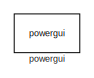
[diagram: root canvas - part 1/4, top left region]
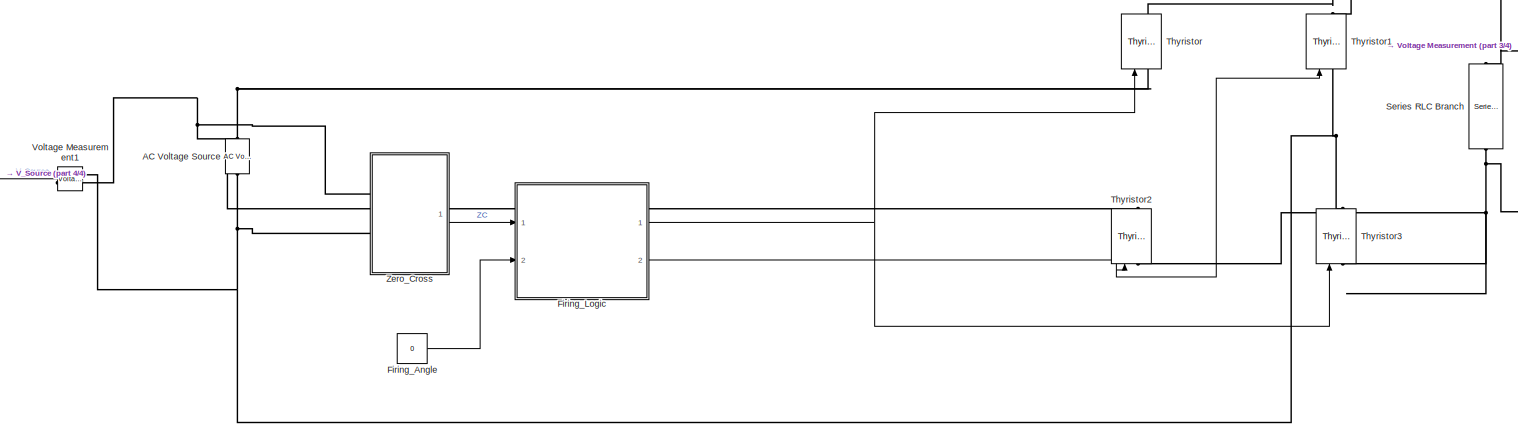
[diagram: root canvas - part 2/4, full width, bottom band]
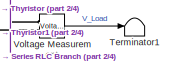
[diagram: root canvas - part 3/4, middle right region]
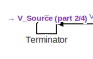
[diagram: root canvas - part 4/4, bottom left region]
MODEL slx_744086b87c65
KIND model
CONFIG AbsTol = auto
CONFIG EnableMultiTasking = on
CONFIG FixedStep = auto
CONFIG MaxStep = 1e-4
CONFIG MinStep = auto
CONFIG RelTol = 1e-3
CONFIG SampleTimeConstraint = Unconstrained
CONFIG Solver = ode23tb
CONFIG SolverName = ode23tb
CONFIG StartTime = 0.0
CONFIG StopTime = 0.1
BLOCK [Reference] AC Voltage Source  REF=powerlib/Electrical
Sources/AC Voltage Source
  NameLocation = left
  Ports = [0, 0, 0, 0, 0, 1, 1]
  SourceBlock = powerlib/Electrical\nSources/AC Voltage Source
  SourceProductBaseCode = PS
  SourceType = AC Voltage Source
BLOCK [Constant] Firing_Angle
  Value = 0
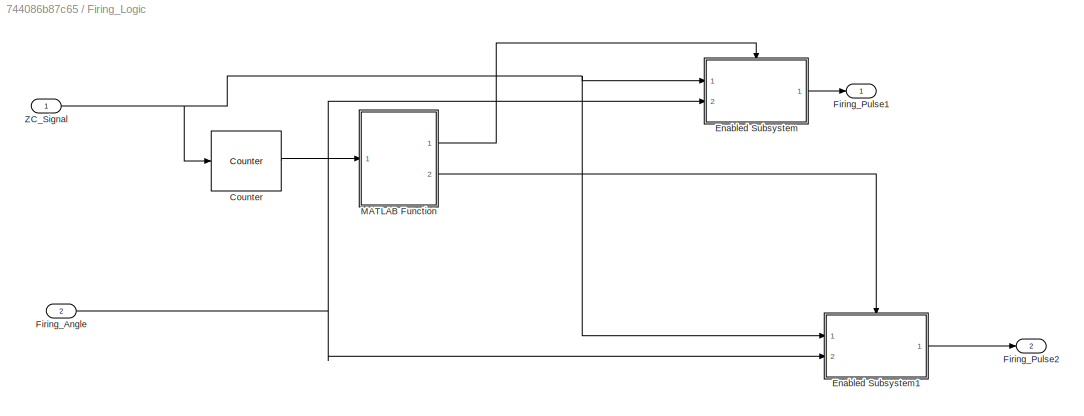
BLOCK [SubSystem] Firing_Logic
  Ports = [2, 2]
  RequestExecContextInheritance = off
BLOCK [Reference] Firing_Logic/Counter  REF=dspswit3/Counter
  Ports = [1, 1]
  SourceBlock = dspswit3/Counter
  SourceProductBaseCode = DS
  SourceType = Counter
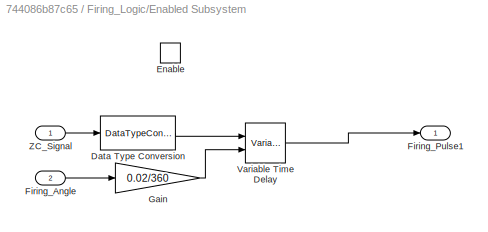
BLOCK [SubSystem] Firing_Logic/Enabled Subsystem
  Ports = [2, 1, 1]
  RequestExecContextInheritance = off
  TreatAsAtomicUnit = on
BLOCK [DataTypeConversion] Firing_Logic/Enabled Subsystem/Data Type Conversion
  OutDataTypeStr = double
  RndMeth = Floor
  SaturateOnIntegerOverflow = off
BLOCK [EnablePort] Firing_Logic/Enabled Subsystem/Enable
  Ports = []
BLOCK [Inport] Firing_Logic/Enabled Subsystem/Firing_Angle
  Port = 2
BLOCK [Outport] Firing_Logic/Enabled Subsystem/Firing_Pulse1
BLOCK [Gain] Firing_Logic/Enabled Subsystem/Gain
  Gain = 0.02/360
BLOCK [VariableTransportDelay] Firing_Logic/Enabled Subsystem/Variable Time Delay
  MaximumDelay = 10
  Ports = [2, 1]
BLOCK [Inport] Firing_Logic/Enabled Subsystem/ZC_Signal
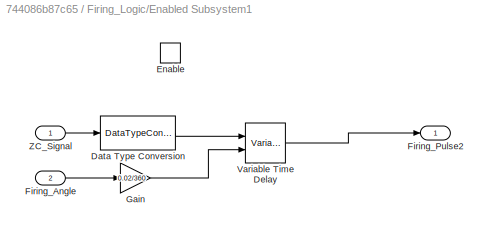
BLOCK [SubSystem] Firing_Logic/Enabled Subsystem1
  Ports = [2, 1, 1]
  RequestExecContextInheritance = off
  TreatAsAtomicUnit = on
BLOCK [DataTypeConversion] Firing_Logic/Enabled Subsystem1/Data Type Conversion
  OutDataTypeStr = double
  RndMeth = Floor
  SaturateOnIntegerOverflow = off
BLOCK [EnablePort] Firing_Logic/Enabled Subsystem1/Enable
  Ports = []
BLOCK [Inport] Firing_Logic/Enabled Subsystem1/Firing_Angle
  Port = 2
BLOCK [Outport] Firing_Logic/Enabled Subsystem1/Firing_Pulse2
BLOCK [Gain] Firing_Logic/Enabled Subsystem1/Gain
  Gain = 0.02/360
BLOCK [VariableTransportDelay] Firing_Logic/Enabled Subsystem1/Variable Time Delay
  MaximumDelay = 10
  Ports = [2, 1]
BLOCK [Inport] Firing_Logic/Enabled Subsystem1/ZC_Signal
BLOCK [Inport] Firing_Logic/Firing_Angle
  Port = 2
BLOCK [Outport] Firing_Logic/Firing_Pulse1
BLOCK [Outport] Firing_Logic/Firing_Pulse2
  Port = 2
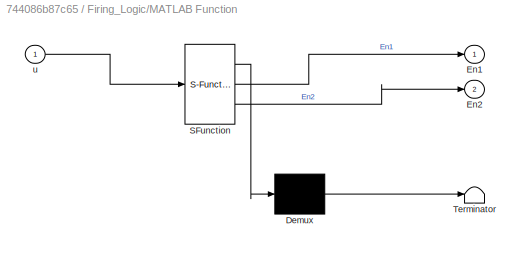
BLOCK [SubSystem] Firing_Logic/MATLAB Function
  ErrorFcn = Stateflow.Translate.translate
  PermitHierarchicalResolution = ExplicitOnly
  Ports = [1, 2]
  RequestExecContextInheritance = off
  SFBlockType = MATLAB Function
  TreatAsAtomicUnit = on
BLOCK [Demux] Firing_Logic/MATLAB Function/ Demux 
  Outputs = 1
  Ports = [1, 1]
BLOCK [S-Function] Firing_Logic/MATLAB Function/ SFunction 
  EnableBusSupport = on
  FunctionName = sf_sfun
  PortCounts = [1 3]
  Ports = [1, 3]
  SFcnIsStateOwnerBlock = off
  SFunctionDeploymentMode = off
  Tag = Stateflow S-Function 2
BLOCK [Terminator] Firing_Logic/MATLAB Function/ Terminator 
BLOCK [Outport] Firing_Logic/MATLAB Function/En1
BLOCK [Outport] Firing_Logic/MATLAB Function/En2
  Port = 2
BLOCK [Inport] Firing_Logic/MATLAB Function/u
BLOCK [Inport] Firing_Logic/ZC_Signal
BLOCK [Reference] Series RLC Branch  REF=powerlib/Elements/Series RLC Branch
  NameLocation = left
  Ports = [0, 0, 0, 0, 0, 1, 1]
  SourceBlock = powerlib/Elements/Series RLC Branch
  SourceProductBaseCode = PS
  SourceType = Series RLC Branch
BLOCK [Terminator] Terminator
  NameLocation = top
BLOCK [Terminator] Terminator1
BLOCK [Reference] Thyristor  REF=powerlib/Power
Electronics/Thyristor
  NameLocation = right
  Ports = [1, 1, 0, 0, 0, 1, 1]
  SourceBlock = powerlib/Power\nElectronics/Thyristor
  SourceProductBaseCode = PS
  SourceType = Thyristor
BLOCK [Reference] Thyristor1  REF=powerlib/Power
Electronics/Thyristor
  NameLocation = right
  Ports = [1, 1, 0, 0, 0, 1, 1]
  SourceBlock = powerlib/Power\nElectronics/Thyristor
  SourceProductBaseCode = PS
  SourceType = Thyristor
BLOCK [Reference] Thyristor2  REF=powerlib/Power
Electronics/Thyristor
  NameLocation = right
  Ports = [1, 1, 0, 0, 0, 1, 1]
  SourceBlock = powerlib/Power\nElectronics/Thyristor
  SourceProductBaseCode = PS
  SourceType = Thyristor
BLOCK [Reference] Thyristor3  REF=powerlib/Power
Electronics/Thyristor
  NameLocation = right
  Ports = [1, 1, 0, 0, 0, 1, 1]
  SourceBlock = powerlib/Power\nElectronics/Thyristor
  SourceProductBaseCode = PS
  SourceType = Thyristor
BLOCK [Reference] Voltage Measurement  REF=powerlib/Measurements/Voltage Measurement
  Ports = [0, 1, 0, 0, 0, 2]
  SourceBlock = powerlib/Measurements/Voltage Measurement
  SourceProductBaseCode = PS
  SourceType = Voltage Measurement
  UserDataPersistent = on
BLOCK [Reference] Voltage Measurement1  REF=powerlib/Measurements/Voltage Measurement
  NameLocation = top
  Ports = [0, 1, 0, 0, 0, 2]
  SourceBlock = powerlib/Measurements/Voltage Measurement
  SourceProductBaseCode = PS
  SourceType = Voltage Measurement
  UserDataPersistent = on
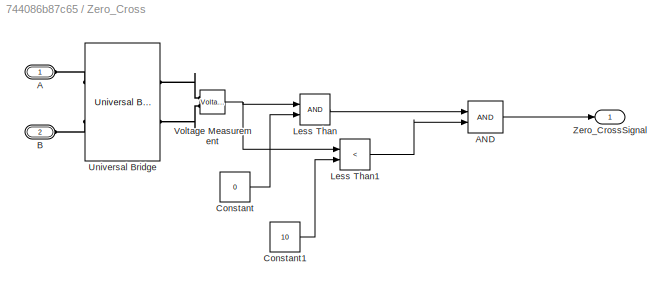
BLOCK [SubSystem] Zero_Cross
  Ports = [0, 1, 0, 0, 0, 2]
  RequestExecContextInheritance = off
BLOCK [PMIOPort] Zero_Cross/A
  Side = Left
BLOCK [Logic] Zero_Cross/AND
  AllPortsSameDT = off
  IconShape = distinctive
  OutDataTypeStr = boolean
  Ports = [2, 1]
BLOCK [PMIOPort] Zero_Cross/B
  Port = 2
  Side = Left
BLOCK [Constant] Zero_Cross/Constant
  Value = 0
BLOCK [Constant] Zero_Cross/Constant1
  Value = 10
BLOCK [RelationalOperator] Zero_Cross/Less Than
  InputSameDT = off
  OutDataTypeStr = boolean
  Ports = [2, 1]
  RndMeth = Simplest
BLOCK [RelationalOperator] Zero_Cross/Less Than1
  InputSameDT = off
  Operator = <
  OutDataTypeStr = boolean
  Ports = [2, 1]
  RndMeth = Simplest
BLOCK [Reference] Zero_Cross/Universal Bridge  REF=powerlib/Power
Electronics/Universal Bridge
  Ports = [0, 0, 0, 0, 0, 2, 2]
  SourceBlock = powerlib/Power\nElectronics/Universal Bridge
  SourceProductBaseCode = PS
  SourceType = Universal Bridge
BLOCK [Reference] Zero_Cross/Voltage Measurement  REF=powerlib/Measurements/Voltage Measurement
  Ports = [0, 1, 0, 0, 0, 2]
  SourceBlock = powerlib/Measurements/Voltage Measurement
  SourceProductBaseCode = PS
  SourceType = Voltage Measurement
  UserDataPersistent = on
BLOCK [Outport] Zero_Cross/Zero_CrossSignal
BLOCK [Reference] powergui  REF=powerlib/powergui
  Ports = []
  Priority = 1
  SourceBlock = powerlib/powergui
  SourceProductBaseCode = PS
  SourceType = PSB option menu block
LINE Firing_Angle:1 -> Firing_Logic:2
LINE Firing_Logic/Counter:1 -> Firing_Logic/MATLAB Function:1
LINE Firing_Logic/Enabled Subsystem/Data Type Conversion:1 -> Firing_Logic/Enabled Subsystem/Variable Time Delay:1
LINE Firing_Logic/Enabled Subsystem/Firing_Angle:1 -> Firing_Logic/Enabled Subsystem/Gain:1
LINE Firing_Logic/Enabled Subsystem/Gain:1 -> Firing_Logic/Enabled Subsystem/Variable Time Delay:2
LINE Firing_Logic/Enabled Subsystem/Variable Time Delay:1 -> Firing_Logic/Enabled Subsystem/Firing_Pulse1:1
LINE Firing_Logic/Enabled Subsystem/ZC_Signal:1 -> Firing_Logic/Enabled Subsystem/Data Type Conversion:1
LINE Firing_Logic/Enabled Subsystem1/Data Type Conversion:1 -> Firing_Logic/Enabled Subsystem1/Variable Time Delay:1
LINE Firing_Logic/Enabled Subsystem1/Firing_Angle:1 -> Firing_Logic/Enabled Subsystem1/Gain:1
LINE Firing_Logic/Enabled Subsystem1/Gain:1 -> Firing_Logic/Enabled Subsystem1/Variable Time Delay:2
LINE Firing_Logic/Enabled Subsystem1/Variable Time Delay:1 -> Firing_Logic/Enabled Subsystem1/Firing_Pulse2:1
LINE Firing_Logic/Enabled Subsystem1/ZC_Signal:1 -> Firing_Logic/Enabled Subsystem1/Data Type Conversion:1
LINE Firing_Logic/Enabled Subsystem1:1 -> Firing_Logic/Firing_Pulse2:1
LINE Firing_Logic/Enabled Subsystem:1 -> Firing_Logic/Firing_Pulse1:1
NET Firing_Logic/Firing_Angle:1 -> Firing_Logic/Enabled Subsystem1:2, Firing_Logic/Enabled Subsystem:2
LINE Firing_Logic/MATLAB Function:1 -> Firing_Logic/Enabled Subsystem:enable
LINE Firing_Logic/MATLAB Function:2 -> Firing_Logic/Enabled Subsystem1:enable
NET Firing_Logic/ZC_Signal:1 -> Firing_Logic/Counter:1, Firing_Logic/Enabled Subsystem1:1, Firing_Logic/Enabled Subsystem:1
NET Firing_Logic:1 -> Thyristor3:1, Thyristor:1
NET Firing_Logic:2 -> Thyristor1:1, Thyristor2:1
LINE Voltage Measurement1:1 -> Terminator:1
LINE Voltage Measurement:1 -> Terminator1:1
LINE Zero_Cross/AND:1 -> Zero_Cross/Zero_CrossSignal:1
LINE Zero_Cross/Constant1:1 -> Zero_Cross/Less Than1:2
LINE Zero_Cross/Constant:1 -> Zero_Cross/Less Than:2
LINE Zero_Cross/Less Than1:1 -> Zero_Cross/AND:2
LINE Zero_Cross/Less Than:1 -> Zero_Cross/AND:1
NET Zero_Cross/Voltage Measurement:1 -> Zero_Cross/Less Than1:1, Zero_Cross/Less Than:1
LINE Zero_Cross:1 -> Firing_Logic:1
PNET net1: AC Voltage Source:LConn1 -- Thyristor2:RConn1 -- Thyristor:LConn1 -- Voltage Measurement1:LConn2 -- Zero_Cross:LConn1
PNET net2: AC Voltage Source:RConn1 -- Thyristor1:LConn1 -- Thyristor3:RConn1 -- Voltage Measurement1:LConn1 -- Zero_Cross:LConn2
PNET net3: Series RLC Branch:LConn1 -- Thyristor1:RConn1 -- Thyristor:RConn1 -- Voltage Measurement:LConn1
PNET net4: Series RLC Branch:RConn1 -- Thyristor2:LConn1 -- Thyristor3:LConn1 -- Voltage Measurement:LConn2
PLINE Zero_Cross/A:RConn1 -- Zero_Cross/Universal Bridge:LConn1
PLINE Zero_Cross/B:RConn1 -- Zero_Cross/Universal Bridge:LConn2
PLINE Zero_Cross/Universal Bridge:RConn1 -- Zero_Cross/Voltage Measurement:LConn1
PLINE Zero_Cross/Universal Bridge:RConn2 -- Zero_Cross/Voltage Measurement:LConn2
note: NET lines group one-source signal fan-out (src -> all destinations, sorted); 1:1 wires keep LINE; PNET lines group multi-terminal physical nets as a canonical sorted terminal list (undirected conserving connections); 2-terminal nets keep the pairwise PLINE form
CHART Firing_Logic/MATLAB Function states=1 transitions=1
  STATE_LABEL 'eML_blk_kernel()'
  STATE_LABEL 'SCRIPT:\nfunction [En1,En2] = fcn(u)\n\nEn1=0;\nEn2=0;\n\nif mod(u,2)==0\n    En1=1;\n    En2=0;\nend\nif mod(u,2)==1\n    En1=0;\n    En2=1;\nend\n\n\n\n'
CHART  states=0 transitions=0
